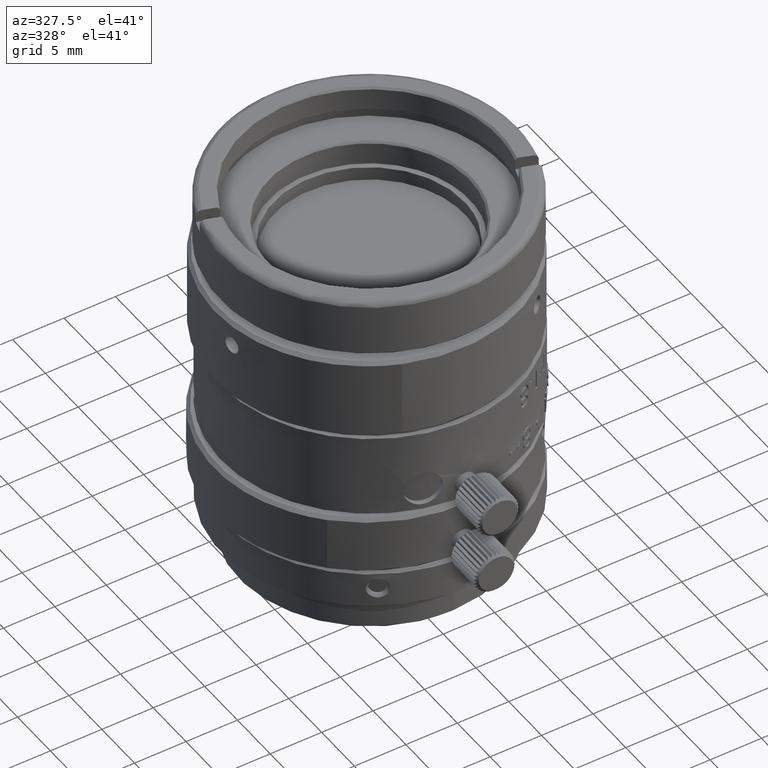
[diagram: clean part render]
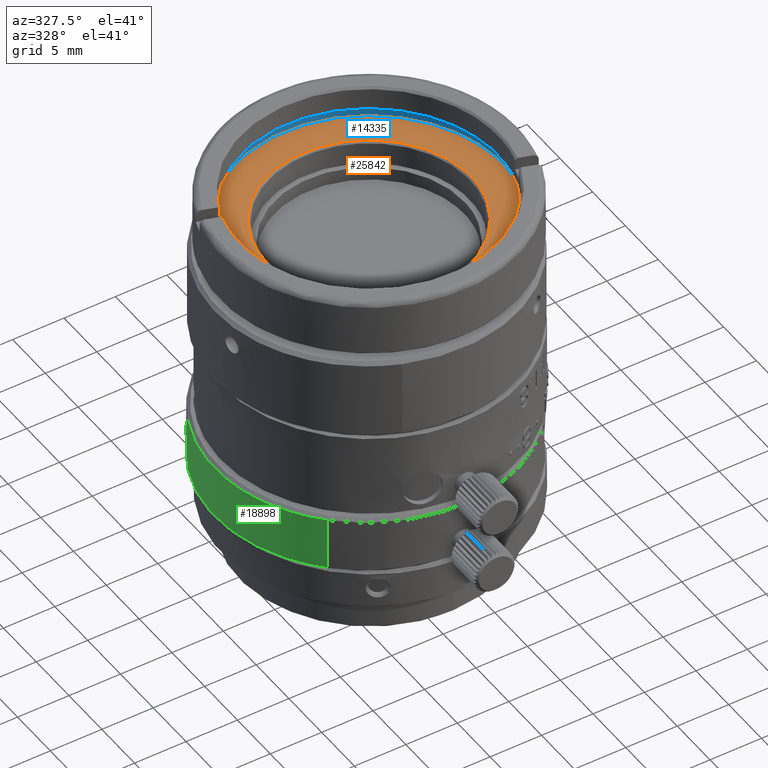
[diagram: same view with three faces highlighted in distinct colors, each labeled with its STEP entity id]
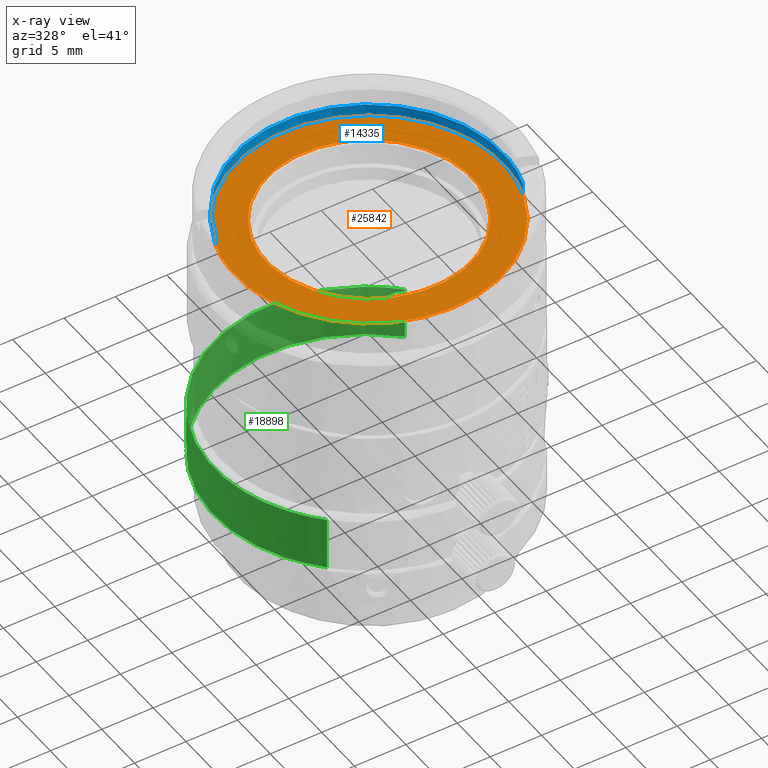
[diagram: x-ray of the same camera — body ghosted, the three highlighted faces saturated]
A machine part, auxiliary view with three faces highlighted in distinct colors.
The next image is the same camera in x-ray (body ghosted, the three faces saturated) — at least one of them is partly hidden behind the body in this view.
Their STEP definitions:

[orange] entity #25842 — the highlighted face is a freeform B-spline surface patch.
#144 = CARTESIAN_POINT ( 'NONE',  ( -1.109062775454421557, -3.412128415335567322, 20.28338461000000592 ) ) ;
#341 = CARTESIAN_POINT ( 'NONE',  ( 7.349475579012211490, -20.29719001293876701, 20.28338461000000237 ) ) ;
#941 = CARTESIAN_POINT ( 'NONE',  ( 9.491106216682762664, -17.04901619689714209, 20.28338460999999882 ) ) ;
#1243 = EDGE_CURVE ( 'NONE', #38739, #14136, #38176, .T. ) ;
#1334 = CARTESIAN_POINT ( 'NONE',  ( -8.348100477745473924, -18.33040316711712947, 20.28338460999999882 ) ) ;
#1423 = CARTESIAN_POINT ( 'NONE',  ( 20.79467018572369597, 7.280631241873954274, 20.28338460999999882 ) ) ;
#1912 = CARTESIAN_POINT ( 'NONE',  ( -9.392456872147651126, -10.77039815209112206, 20.28338461000000592 ) ) ;
#2543 = CARTESIAN_POINT ( 'NONE',  ( 9.677077302418627625, -10.02442381864011267, 20.28338460999999882 ) ) ;
#2933 = CARTESIAN_POINT ( 'NONE',  ( -14.48320873753839599, -16.41440033225177331, 20.28338460999999526 ) ) ;
#3328 = CARTESIAN_POINT ( 'NONE',  ( -4.785197564117120272, -4.686195844254519294, 20.28338461000000237 ) ) ;
#3898 = EDGE_LOOP ( 'NONE', ( #35118, #5634 ) ) ;
#3923 = CARTESIAN_POINT ( 'NONE',  ( 8.588653490000000446, -29.92460800799999987, 20.28338460999999882 ) ) ;
#4313 = CARTESIAN_POINT ( 'NONE',  ( -9.622167906664431669, -14.65426837845442876, 20.28338461000000237 ) ) ;
#4905 = CARTESIAN_POINT ( 'NONE',  ( -3.503810593897142667, -22.52540253868276920, 20.28338460999999882 ) ) ;
#5104 = CARTESIAN_POINT ( 'NONE',  ( -9.166168021418627632, -16.55507810635988619, 20.28338461000000237 ) ) ;
#5366 = EDGE_LOOP ( 'NONE', ( #20539, #31914 ) ) ;
#5543 = CARTESIAN_POINT ( 'NONE',  ( 3.380104013274721542, -28.02841434089751260, 20.28338460999999526 ) ) ;
#5634 = ORIENTED_EDGE ( 'NONE', *, *, #31205, .T. ) ;
#5730 = CARTESIAN_POINT ( 'NONE',  ( -5.335173139825152511, -5.032983057358619838, 20.28338461000000237 ) ) ;
#5926 = CARTESIAN_POINT ( 'NONE',  ( 0.1942319905056721641, -3.318512966414747023, 20.28338460999999882 ) ) ;
#6127 = CARTESIAN_POINT ( 'NONE',  ( -8.980196935682764448, -9.530485728102858545, 20.28338461000000237 ) ) ;
#6325 = CARTESIAN_POINT ( 'NONE',  ( 7.710312381788802405, -6.667483163440171445, 20.28338460999999882 ) ) ;
#6526 = CARTESIAN_POINT ( 'NONE',  ( 5.296106845117120265, -21.89330608074548223, 20.28338461000000592 ) ) ;
#7329 = CARTESIAN_POINT ( 'NONE',  ( -5.764219777184528049, -21.23914434021488518, 20.28338460999999882 ) ) ;
#7917 = CARTESIAN_POINT ( 'NONE',  ( -5.233363613045394658, -21.61454582572108407, 20.28338460999999882 ) ) ;
#8110 = CARTESIAN_POINT ( 'NONE',  ( -4.097703655908667919, -22.26077919546434103, 20.28338461000000237 ) ) ;
#8397 = CARTESIAN_POINT ( 'NONE',  ( -3.877321792670854528, 15.48385079619082383, 20.28338460999999882 ) ) ;
#8735 = CARTESIAN_POINT ( 'NONE',  ( 10.02315413416422629, -11.28441267438824980, 20.28338460999999882 ) ) ;
#8929 = CARTESIAN_POINT ( 'NONE',  ( 10.20948557749876251, -13.87848096170370304, 20.28338460999999882 ) ) ;
#9320 = CARTESIAN_POINT ( 'NONE',  ( 9.697236188783811883, -16.42905998686619995, 20.28338460999999882 ) ) ;
#10320 = CARTESIAN_POINT ( 'NONE',  ( -0.3332753587036950127, -23.24378189949876372, 20.28338461000000592 ) ) ;
#11938 = CARTESIAN_POINT ( 'NONE',  ( 9.444248447309332661, -9.417361041980383263, 20.28338461000000592 ) ) ;
#12127 = CARTESIAN_POINT ( 'NONE',  ( -8.069340222721088196, -7.800932708954610995, 20.28338460999999526 ) ) ;
#12331 = CARTESIAN_POINT ( 'NONE',  ( -1.749883647611750526, -3.522051468835771360, 20.28338461000000237 ) ) ;
#13137 = CARTESIAN_POINT ( 'NONE',  ( 9.226482873464334489, -17.64290925890867356, 20.28338461000000237 ) ) ;
#13893 = EDGE_CURVE ( 'NONE', #23832, #35169, #22679, .T. ) ;
#14136 = VERTEX_POINT ( 'NONE', #32043 ) ;
#14742 = CARTESIAN_POINT ( 'NONE',  ( 10.22669263658524663, -13.22852831250567540, 20.28338460999999882 ) ) ;
#14748 = CARTESIAN_POINT ( 'NONE',  ( -12.08054135273269836, -9.188141181895538523, 20.28338460999999882 ) ) ;
#14947 = CARTESIAN_POINT ( 'NONE',  ( 10.18878325910837290, -24.61761989017706398, 20.28338460999999526 ) ) ;
#15529 = CARTESIAN_POINT ( 'NONE',  ( -9.186326908163579219, -10.15044194194771876, 20.28338460999999882 ) ) ;
#16054 = EDGE_CURVE ( 'NONE', #14136, #38739, #22046, .T. ) ;
#16138 = CARTESIAN_POINT ( 'NONE',  ( 16.89031168599999688, -4.956552113000000759, 20.28338460999999882 ) ) ;
#16789 = CARTESIAN_POINT ( 'NONE',  ( 12.59145063576658075, -17.39136073965914875, 20.28338460999999882 ) ) ;
#17123 = CARTESIAN_POINT ( 'NONE',  ( -1.629791122870187126, -23.08133834731085088, 20.28338461000000237 ) ) ;
#17315 = CARTESIAN_POINT ( 'NONE',  ( -7.199403100788805965, -19.91201876155982120, 20.28338461000000237 ) ) ;
#17937 = CARTESIAN_POINT ( 'NONE',  ( 2.140700403870187341, -3.498163577689150650, 20.28338461000000237 ) ) ;
#18333 = CARTESIAN_POINT ( 'NONE',  ( 8.859009758745475693, -8.249098757882872945, 20.28338460999999882 ) ) ;
#18525 = CARTESIAN_POINT ( 'NONE',  ( 8.512222545641378701, -7.699123182174846036, 20.28338460999999882 ) ) ;
#19128 = FACE_BOUND ( 'NONE', #3898, .T. ) ;
#19528 = CARTESIAN_POINT ( 'NONE',  ( -6.751984409938758702, -20.38377190101221004, 20.28338460999999526 ) ) ;
#19728 = CARTESIAN_POINT ( 'NONE',  ( -9.186326908163579219, -10.15044194194771876, 20.28338460999999882 ) ) ;
#19812 = B_SPLINE_SURFACE_WITH_KNOTS ( 'NONE', 1, 1, ( 
 ( #3923, #28505 ),
 ( #16138, #25318 ) ),
 .UNSPECIFIED., .F., .F., .F.,
 ( 2, 2 ),
 ( 2, 2 ),
 ( 0.0000000000000000000, 1.000000000000000000 ),
 ( 0.0000000000000000000, 1.000000000000000000 ),
 .UNSPECIFIED. ) ;
#19929 = CARTESIAN_POINT ( 'NONE',  ( 0.3166772904943285782, -23.26098895858525495, 20.28338461000000947 ) ) ;
#20126 = CARTESIAN_POINT ( 'NONE',  ( -9.536132744310851450, -11.40450519912982408, 20.28338460999999882 ) ) ;
#20325 = CARTESIAN_POINT ( 'NONE',  ( -9.512244853164224523, -15.29508925061174374, 20.28338460999999171 ) ) ;
#20539 = ORIENTED_EDGE ( 'NONE', *, *, #16054, .F. ) ;
#20757 = CARTESIAN_POINT ( 'NONE',  ( -3.616935280019627275, -4.100957155690672096, 20.28338460999999882 ) ) ;
#21147 = CARTESIAN_POINT ( 'NONE',  ( 9.903366153147649342, -15.80910377290887681, 20.28338461000000237 ) ) ;
#21344 = CARTESIAN_POINT ( 'NONE',  ( 4.608612936908667912, -4.318722729535667604, 20.28338461000000237 ) ) ;
#21538 = CARTESIAN_POINT ( 'NONE',  ( 8.580249503721086413, -18.77856921604538698, 20.28338461000000237 ) ) ;
#22046 =( BOUNDED_CURVE ( )  B_SPLINE_CURVE ( 3, ( #35770, #8397, #1423, #32182 ),
 .UNSPECIFIED., .F., .F. ) 
 B_SPLINE_CURVE_WITH_KNOTS ( ( 4, 4 ),
 ( -9.103785541910911050, -5.962192888369839849 ),
 .UNSPECIFIED. ) 
 CURVE ( )  GEOMETRIC_REPRESENTATION_ITEM ( )  RATIONAL_B_SPLINE_CURVE ( ( 1.000000000000000000, 0.3333333335299309419, 0.3333333335299309419, 1.000000000000000000 ) ) 
 REPRESENTATION_ITEM ( '' )  );
#22679 = B_SPLINE_CURVE_WITH_KNOTS ( 'NONE', 3,
 ( #9320, #941, #13137, #21538, #33701, #341, #24715, #33898, #6526, #28703, #23116, #29289, #28901, #19929, #10320, #17123, #37697, #4905, #8110, #7917, #7329, #19528, #17315, #32489, #1334, #31699, #5104, #20325, #4313, #29484, #37892, #20126, #1912, #19728 ),
 .UNSPECIFIED., .F., .F.,
 ( 4, 2, 2, 2, 2, 2, 2, 2, 2, 2, 2, 2, 2, 2, 2, 2, 4 ),
 ( 0.0000000000000000000, 0.1963495408493620697, 0.3926990816987241395, 0.5890486225480865423, 0.7853981633974490562, 0.9817477042468113480, 1.178097245096173751, 1.374446785945536265, 1.570796326794898778, 1.767145867644260848, 1.963495408493622696, 2.159844949342985210, 2.356194490192347057, 2.552544031041708905, 2.748893571891071197, 2.945243112740433045, 3.141592653589795336 ),
 .UNSPECIFIED. ) ;
#23116 = CARTESIAN_POINT ( 'NONE',  ( 3.520781784359885869, -22.71137362441862351, 20.28338460999999526 ) ) ;
#23832 = VERTEX_POINT ( 'NONE', #34037 ) ;
#24130 = CARTESIAN_POINT ( 'NONE',  ( 2.774807450908865381, -3.641839449852348309, 20.28338460999999882 ) ) ;
#24520 = CARTESIAN_POINT ( 'NONE',  ( 6.275129058184527153, -5.340357584785111911, 20.28338461000000237 ) ) ;
#24715 = CARTESIAN_POINT ( 'NONE',  ( 6.877722439559821765, -20.74460870378879918, 20.28338460999999526 ) ) ;
#24717 = CARTESIAN_POINT ( 'NONE',  ( 10.13307718766443344, -11.92523354654557011, 20.28338460999999882 ) ) ;
#25318 = CARTESIAN_POINT ( 'NONE',  ( -8.077744209000000453, 3.345106083000000119, 20.28338460999999882 ) ) ;
#25842 = ADVANCED_FACE ( 'NONE', ( #19128, #31301 ), #19812, .T. ) ;
#26922 = CARTESIAN_POINT ( 'NONE',  ( 10.04704202531085144, -15.17499672587017834, 20.28338460999999882 ) ) ;
#27315 = CARTESIAN_POINT ( 'NONE',  ( 12.59145063576658075, -17.39136073965914875, 20.28338460999999882 ) ) ;
#27506 = CARTESIAN_POINT ( 'NONE',  ( 4.014719874897141771, -4.054099386317237652, 20.28338461000000237 ) ) ;
#28505 = CARTESIAN_POINT ( 'NONE',  ( -16.37940240500000044, -21.62294981200000166, 20.28338460999999882 ) ) ;
#28703 = CARTESIAN_POINT ( 'NONE',  ( 4.127844561019626823, -22.47854476930931611, 20.28338460999999882 ) ) ;
#28901 = CARTESIAN_POINT ( 'NONE',  ( 1.619972056454418663, -23.16737350966442932, 20.28338460999999882 ) ) ;
#29289 = CARTESIAN_POINT ( 'NONE',  ( 2.260792928611746522, -23.05745045616423639, 20.28338461000000237 ) ) ;
#29484 = CARTESIAN_POINT ( 'NONE',  ( -9.715783355585255521, -13.35097361249432524, 20.28338460999999882 ) ) ;
#29919 = CARTESIAN_POINT ( 'NONE',  ( 5.744272894045393762, -4.964956099278917456, 20.28338461000000237 ) ) ;
#29925 = CARTESIAN_POINT ( 'NONE',  ( -11.07241428821441787, -23.22307957878499707, 20.28338460999999526 ) ) ;
#30311 = CARTESIAN_POINT ( 'NONE',  ( -3.846155137469847496, -25.62574695984125128, 20.28338460999999882 ) ) ;
#30695 = CARTESIAN_POINT ( 'NONE',  ( -3.009872503359887652, -3.868128300581369139, 20.28338460999999882 ) ) ;
#30711 = CARTESIAN_POINT ( 'NONE',  ( -9.186326908163579219, -10.15044194194771876, 20.28338460999999882 ) ) ;
#31205 = EDGE_CURVE ( 'NONE', #35169, #23832, #35820, .T. ) ;
#31301 = FACE_OUTER_BOUND ( 'NONE', #5366, .T. ) ;
#31699 = CARTESIAN_POINT ( 'NONE',  ( -8.933339166309327339, -17.16214088301961738, 20.28338460999999882 ) ) ;
#31914 = ORIENTED_EDGE ( 'NONE', *, *, #1243, .F. ) ;
#32043 = CARTESIAN_POINT ( 'NONE',  ( -12.08054135273269836, -9.188141181895538523, 20.28338460999999882 ) ) ;
#32182 = CARTESIAN_POINT ( 'NONE',  ( 12.59145063576658075, -17.39136073965914875, 20.28338460999999882 ) ) ;
#32489 = CARTESIAN_POINT ( 'NONE',  ( -8.001313264641384038, -18.88037874282514039, 20.28338460999999882 ) ) ;
#33701 = CARTESIAN_POINT ( 'NONE',  ( 8.204848018214892846, -19.30942538018452126, 20.28338461000000592 ) ) ;
#33703 = CARTESIAN_POINT ( 'NONE',  ( -6.838566298012210609, -6.282311912061237180, 20.28338460999999882 ) ) ;
#33898 = CARTESIAN_POINT ( 'NONE',  ( 5.846082420825153392, -21.54651886764138169, 20.28338460999999882 ) ) ;
#34037 = CARTESIAN_POINT ( 'NONE',  ( 9.697236188783811883, -16.42905998686619995, 20.28338460999999882 ) ) ;
#35118 = ORIENTED_EDGE ( 'NONE', *, *, #13893, .T. ) ;
#35169 = VERTEX_POINT ( 'NONE', #30711 ) ;
#35770 = CARTESIAN_POINT ( 'NONE',  ( -12.08054135273269836, -9.188141181895538523, 20.28338460999999882 ) ) ;
#35820 = B_SPLINE_CURVE_WITH_KNOTS ( 'NONE', 3,
 ( #15529, #6127, #39500, #12127, #36109, #33703, #36300, #5730, #3328, #20757, #30695, #12331, #144, #5926, #36700, #17937, #24130, #27506, #21344, #29919, #24520, #39309, #6325, #18525, #18333, #11938, #2543, #8735, #24717, #14742, #8929, #26922, #21147, #39116 ),
 .UNSPECIFIED., .F., .F.,
 ( 4, 2, 2, 2, 2, 2, 2, 2, 2, 2, 2, 2, 2, 2, 2, 2, 4 ),
 ( 0.0000000000000000000, 0.1963495408493621530, 0.3926990816987243060, 0.5890486225480864313, 0.7853981633974486121, 0.9817477042468109039, 1.178097245096172863, 1.374446785945535376, 1.570796326794897668, 1.767145867644259960, 1.963495408493622030, 2.159844949342984322, 2.356194490192346169, 2.552544031041708461, 2.748893571891070753, 2.945243112740432601, 3.141592653589795336 ),
 .UNSPECIFIED. ) ;
#36109 = CARTESIAN_POINT ( 'NONE',  ( -7.693938737214892853, -7.270076544815476716, 20.28338461000000237 ) ) ;
#36300 = CARTESIAN_POINT ( 'NONE',  ( -6.366813158559826213, -5.834893221211192582, 20.28338460999999882 ) ) ;
#36700 = CARTESIAN_POINT ( 'NONE',  ( 0.8441846397036923966, -3.335720025501235142, 20.28338460999999526 ) ) ;
#37697 = CARTESIAN_POINT ( 'NONE',  ( -2.263898169908865832, -22.93766247514764345, 20.28338460999999882 ) ) ;
#37892 = CARTESIAN_POINT ( 'NONE',  ( -9.698576296498762517, -12.70102096329629404, 20.28338460999999882 ) ) ;
#38176 =( BOUNDED_CURVE ( )  B_SPLINE_CURVE ( 3, ( #27315, #14947, #5543, #30311, #29925, #2933, #14748 ),
 .UNSPECIFIED., .F., .F. ) 
 B_SPLINE_CURVE_WITH_KNOTS ( ( 4, 3, 4 ),
 ( -5.962192888369839849, -4.391396561550582334, -2.820600234731325262 ),
 .UNSPECIFIED. ) 
 CURVE ( )  GEOMETRIC_REPRESENTATION_ITEM ( )  RATIONAL_B_SPLINE_CURVE ( ( 1.000000000000000000, 0.8047378540760217192, 0.8047378540760217192, 1.000000000000000000, 0.8047378540760217192, 0.8047378540760217192, 1.000000000000000000 ) ) 
 REPRESENTATION_ITEM ( '' )  );
#38739 = VERTEX_POINT ( 'NONE', #16789 ) ;
#39116 = CARTESIAN_POINT ( 'NONE',  ( 9.697236188783811883, -16.42905998686619995, 20.28338460999999882 ) ) ;
#39309 = CARTESIAN_POINT ( 'NONE',  ( 7.262893690938759583, -6.195730023987784385, 20.28338461000000237 ) ) ;
#39500 = CARTESIAN_POINT ( 'NONE',  ( -8.715573592464330943, -8.936592666091327075, 20.28338460999999882 ) ) ;

[blue] entity #14335 — the highlighted face is a freeform B-spline surface patch.
#15 = CARTESIAN_POINT ( 'NONE',  ( 11.04319160798588584, -5.985413161146157179, 21.48338460999999810 ) ) ;
#539 = B_SPLINE_CURVE_WITH_KNOTS ( 'NONE', 3,
 ( #35787, #8416, #26598, #38784, #24196, #9191, #32788, #5412, #21019, #2996, #21407, #2806, #18006, #36372, #21213, #38980, #15194, #17623, #12008, #39184, #2220, #27377, #23811, #15, #5605, #29793, #24390, #2417, #14421, #30179, #33567, #6195, #14613, #26791 ),
 .UNSPECIFIED., .F., .F.,
 ( 4, 2, 2, 2, 2, 2, 2, 2, 2, 2, 2, 2, 2, 2, 2, 2, 4 ),
 ( 0.0000000000000000000, 0.1963495408493622640, 0.3926990816987245281, 0.5890486225480867644, 0.7853981633974488341, 0.9817477042468109039, 1.178097245096173085, 1.374446785945535376, 1.570796326794897446, 1.767145867644259960, 1.963495408493622030, 2.159844949342984322, 2.356194490192346613, 2.552544031041708905, 2.748893571891071197, 2.945243112740433489, 3.141592653589795336 ),
 .UNSPECIFIED. ) ;
#1423 = CARTESIAN_POINT ( 'NONE',  ( 20.79467018572369597, 7.280631241873954274, 20.28338460999999882 ) ) ;
#1670 = CARTESIAN_POINT ( 'NONE',  ( 12.59145063576658075, -17.39136073965914875, 21.48338460999999810 ) ) ;
#2220 = CARTESIAN_POINT ( 'NONE',  ( 8.120355857252194554, -2.903608811147684765, 21.48338460999999810 ) ) ;
#2417 = CARTESIAN_POINT ( 'NONE',  ( 13.01727308462221977, -10.66971097084837616, 21.48338461000000166 ) ) ;
#2806 = CARTESIAN_POINT ( 'NONE',  ( -2.364585351151627712, -0.5279325183777757724, 21.48338461000000166 ) ) ;
#2962 = ORIENTED_EDGE ( 'NONE', *, *, #16054, .T. ) ;
#2996 = CARTESIAN_POINT ( 'NONE',  ( -4.803949278264885159, -1.284291718260630377, 21.48338461000000876 ) ) ;
#3439 = CARTESIAN_POINT ( 'NONE',  ( -12.08054135499999937, -9.188141181999995410, 21.48338460999999810 ) ) ;
#3666 = CARTESIAN_POINT ( 'NONE',  ( -12.08054135273269836, -9.188141181895538523, 21.48338460999999810 ) ) ;
#5059 = EDGE_CURVE ( 'NONE', #37480, #12938, #539, .T. ) ;
#5412 = CARTESIAN_POINT ( 'NONE',  ( -7.048883160853844032, -2.502013995014114922, 21.48338461000000876 ) ) ;
#5605 = CARTESIAN_POINT ( 'NONE',  ( 11.49628042463915634, -6.703974214922062025, 21.48338461000000166 ) ) ;
#6195 = CARTESIAN_POINT ( 'NONE',  ( 13.04848339532759027, -15.75288612601722882, 21.48338460999999810 ) ) ;
#6379 = CARTESIAN_POINT ( 'NONE',  ( -12.08054135273269836, -9.188141181895538523, 21.48338460999999810 ) ) ;
#6574 = EDGE_CURVE ( 'NONE', #14136, #37480, #38599, .T. ) ;
#8397 = CARTESIAN_POINT ( 'NONE',  ( -3.877321792670854528, 15.48385079619082383, 20.28338460999999882 ) ) ;
#8416 = CARTESIAN_POINT ( 'NONE',  ( -11.81122581090974677, -8.378148138170569581, 21.48338461000000166 ) ) ;
#9191 = CARTESIAN_POINT ( 'NONE',  ( -9.013115437118631945, -4.134302945032468202, 21.48338460999999810 ) ) ;
#9223 = FACE_OUTER_BOUND ( 'NONE', #16464, .T. ) ;
#12008 = CARTESIAN_POINT ( 'NONE',  ( 5.942998188125939052, -1.568809515559282941, 21.48338460999999455 ) ) ;
#12938 = VERTEX_POINT ( 'NONE', #26872 ) ;
#13118 = ORIENTED_EDGE ( 'NONE', *, *, #6574, .F. ) ;
#14136 = VERTEX_POINT ( 'NONE', #32043 ) ;
#14335 = ADVANCED_FACE ( 'NONE', ( #9223 ), #24826, .T. ) ;
#14421 = CARTESIAN_POINT ( 'NONE',  ( 13.16089117831899635, -11.50696441820984006, 21.48338461000000166 ) ) ;
#14613 = CARTESIAN_POINT ( 'NONE',  ( 12.86076616795965677, -16.58136769536660537, 21.48338460999999810 ) ) ;
#15194 = CARTESIAN_POINT ( 'NONE',  ( 3.547071373366591729, -0.6844394350403318894, 21.48338461000000166 ) ) ;
#15229 = CARTESIAN_POINT ( 'NONE',  ( -3.877321796365009288, 15.48385079987937551, 20.28338461000000237 ) ) ;
#16054 = EDGE_CURVE ( 'NONE', #14136, #38739, #22046, .T. ) ;
#16464 = EDGE_LOOP ( 'NONE', ( #32664, #13118, #2962, #37483 ) ) ;
#16789 = CARTESIAN_POINT ( 'NONE',  ( 12.59145063576658075, -17.39136073965914875, 20.28338460999999882 ) ) ;
#17071 = CARTESIAN_POINT ( 'NONE',  ( 12.59145063576658075, -17.39136073965914875, 20.28338460999999882 ) ) ;
#17623 = CARTESIAN_POINT ( 'NONE',  ( 5.167057464829429847, -1.223070511090255552, 21.48338460999999810 ) ) ;
#18006 = CARTESIAN_POINT ( 'NONE',  ( -1.527331903790151824, -0.3843144246809985232, 21.48338461000000521 ) ) ;
#18265 = CARTESIAN_POINT ( 'NONE',  ( -12.08054135273269836, -9.188141181895538523, 20.28338460999999882 ) ) ;
#18430 = CARTESIAN_POINT ( 'NONE',  ( -12.08054135499999937, -9.188141181999995410, 20.28338460999999882 ) ) ;
#21019 = CARTESIAN_POINT ( 'NONE',  ( -6.330322107077930305, -2.048925178360836874, 21.48338461000000166 ) ) ;
#21213 = CARTESIAN_POINT ( 'NONE',  ( 1.024649618082635882, -0.2844843742506369400, 21.48338461000000166 ) ) ;
#21407 = CARTESIAN_POINT ( 'NONE',  ( -4.010801933720960832, -0.9800932062384655197, 21.48338461000000521 ) ) ;
#21837 = CARTESIAN_POINT ( 'NONE',  ( 20.79467018719686777, 7.280631246304696269, 21.48338460999999810 ) ) ;
#22046 =( BOUNDED_CURVE ( )  B_SPLINE_CURVE ( 3, ( #35770, #8397, #1423, #32182 ),
 .UNSPECIFIED., .F., .F. ) 
 B_SPLINE_CURVE_WITH_KNOTS ( ( 4, 4 ),
 ( -9.103785541910911050, -5.962192888369839849 ),
 .UNSPECIFIED. ) 
 CURVE ( )  GEOMETRIC_REPRESENTATION_ITEM ( )  RATIONAL_B_SPLINE_CURVE ( ( 1.000000000000000000, 0.3333333335299309419, 0.3333333335299309419, 1.000000000000000000 ) ) 
 REPRESENTATION_ITEM ( '' )  );
#23811 = CARTESIAN_POINT ( 'NONE',  ( 9.995469801472937732, -4.637541774855502119, 21.48338461000000166 ) ) ;
#24196 = CARTESIAN_POINT ( 'NONE',  ( -10.13068751085232222, -5.424849745747817309, 21.48338461000000166 ) ) ;
#24390 = CARTESIAN_POINT ( 'NONE',  ( 12.56511239676153124, -9.023494388279042155, 21.48338461000000521 ) ) ;
#24826 =( BOUNDED_SURFACE ( )  B_SPLINE_SURFACE ( 1, 3, ( 
 ( #30808, #34009, #15229, #18430 ),
 ( #28215, #21837, #27409, #3439 ) ),
 .UNSPECIFIED., .F., .F., .F. ) 
 B_SPLINE_SURFACE_WITH_KNOTS ( ( 2, 2 ),
 ( 4, 4 ),
 ( 0.0000000000000000000, 1.000000000000000000 ),
 ( 0.0000000000000000000, 1.000000000000000000 ),
 .UNSPECIFIED. ) 
 GEOMETRIC_REPRESENTATION_ITEM ( )  RATIONAL_B_SPLINE_SURFACE ( (
 ( 1.000000000000000000, 0.3333333334700690487, 0.3333333334700690487, 1.000000000000000000),
 ( 1.000000000000000000, 0.3333333334700690487, 0.3333333334700690487, 1.000000000000000000) ) ) 
 REPRESENTATION_ITEM ( '' )  SURFACE ( )  );
#26598 = CARTESIAN_POINT ( 'NONE',  ( -11.46548680644071538, -7.602207414874049718, 21.48338461000000166 ) ) ;
#26791 = CARTESIAN_POINT ( 'NONE',  ( 12.59145063576658075, -17.39136073965914875, 21.48338460999999810 ) ) ;
#26872 = CARTESIAN_POINT ( 'NONE',  ( 12.59145063576658075, -17.39136073965914875, 21.48338460999999810 ) ) ;
#27377 = CARTESIAN_POINT ( 'NONE',  ( 9.410902657967527674, -4.021180884881367490, 21.48338461000000166 ) ) ;
#27409 = CARTESIAN_POINT ( 'NONE',  ( -3.877321796365009288, 15.48385079987937551, 21.48338460999999810 ) ) ;
#28215 = CARTESIAN_POINT ( 'NONE',  ( 12.59145063868250780, -17.39136073893969225, 21.48338460999999810 ) ) ;
#29793 = CARTESIAN_POINT ( 'NONE',  ( 12.26091388473937194, -8.230347043735132928, 21.48338460999999810 ) ) ;
#30179 = CARTESIAN_POINT ( 'NONE',  ( 13.28320276537320055, -13.20976159187986276, 21.48338460999999810 ) ) ;
#30808 = CARTESIAN_POINT ( 'NONE',  ( 12.59145063868250780, -17.39136073893969225, 20.28338460999999882 ) ) ;
#31737 = B_SPLINE_CURVE_WITH_KNOTS ( 'NONE', 1,
 ( #1670, #17071 ),
 .UNSPECIFIED., .F., .F.,
 ( 2, 2 ),
 ( -1.000000000000000000, 0.0000000000000000000 ),
 .UNSPECIFIED. ) ;
#32043 = CARTESIAN_POINT ( 'NONE',  ( -12.08054135273269836, -9.188141181895538523, 20.28338460999999882 ) ) ;
#32182 = CARTESIAN_POINT ( 'NONE',  ( 12.59145063576658075, -17.39136073965914875, 20.28338460999999882 ) ) ;
#32664 = ORIENTED_EDGE ( 'NONE', *, *, #5059, .F. ) ;
#32788 = CARTESIAN_POINT ( 'NONE',  ( -8.396754547144499981, -3.549735801527058587, 21.48338461000000521 ) ) ;
#33567 = CARTESIAN_POINT ( 'NONE',  ( 13.26072122874936277, -14.05894594008265130, 21.48338461000000166 ) ) ;
#34009 = CARTESIAN_POINT ( 'NONE',  ( 20.79467018719686777, 7.280631246304696269, 20.28338461000000237 ) ) ;
#35770 = CARTESIAN_POINT ( 'NONE',  ( -12.08054135273269836, -9.188141181895538523, 20.28338460999999882 ) ) ;
#35787 = CARTESIAN_POINT ( 'NONE',  ( -12.08054135273269836, -9.188141181895538523, 21.48338460999999810 ) ) ;
#36372 = CARTESIAN_POINT ( 'NONE',  ( 0.1754652698798543631, -0.2620028376268008774, 21.48338460999999810 ) ) ;
#37480 = VERTEX_POINT ( 'NONE', #6379 ) ;
#37483 = ORIENTED_EDGE ( 'NONE', *, *, #37746, .F. ) ;
#37746 = EDGE_CURVE ( 'NONE', #12938, #38739, #31737, .T. ) ;
#38599 = B_SPLINE_CURVE_WITH_KNOTS ( 'NONE', 1,
 ( #18265, #3666 ),
 .UNSPECIFIED., .F., .F.,
 ( 2, 2 ),
 ( -1.000000000000000000, 0.0000000000000000000 ),
 .UNSPECIFIED. ) ;
#38739 = VERTEX_POINT ( 'NONE', #16789 ) ;
#38784 = CARTESIAN_POINT ( 'NONE',  ( -10.62116176474229334, -6.118430646357456482, 21.48338460999999810 ) ) ;
#38980 = CARTESIAN_POINT ( 'NONE',  ( 2.718589804017246703, -0.4967222076724099877, 21.48338460999999810 ) ) ;
#39184 = CARTESIAN_POINT ( 'NONE',  ( 7.426774956642548275, -2.413134557257715418, 21.48338461000000521 ) ) ;

[green] entity #18898 — the highlighted face is a freeform B-spline surface patch.
#169 = CARTESIAN_POINT ( 'NONE',  ( 4.320174984081688763, 3.331510790516535092, -4.928615390000000041 ) ) ;
#1531 = CARTESIAN_POINT ( 'NONE',  ( -12.35568391716207870, -5.150646410162210032, -3.626252984498358867 ) ) ;
#1562 = CARTESIAN_POINT ( 'NONE',  ( -12.77806132287788010, -5.839841467546145637, -2.728649524009844285 ) ) ;
#1913 = CARTESIAN_POINT ( 'NONE',  ( -12.36581544753527417, -5.165704953122689069, -3.727110977182377827 ) ) ;
#2020 = CARTESIAN_POINT ( 'NONE',  ( 9.263945243691624754, -1.728017637879241564, -1.059975738130479517 ) ) ;
#2133 = CARTESIAN_POINT ( 'NONE',  ( -13.08992796001250092, -6.409015884902361293, -3.071240104212243249 ) ) ;
#2156 = CARTESIAN_POINT ( 'NONE',  ( 10.42982502467092054, -2.778139255170930078, 0.2213846100000000094 ) ) ;
#3151 = CARTESIAN_POINT ( 'NONE',  ( -4.320174972318992168, 3.331510793588996933, 0.2213846099999999817 ) ) ;
#3306 = CARTESIAN_POINT ( 'NONE',  ( 10.42982502467092054, -2.778139255170930078, 0.2213846100000000094 ) ) ;
#3355 = ORIENTED_EDGE ( 'NONE', *, *, #31473, .F. ) ;
#3498 = EDGE_CURVE ( 'NONE', #39392, #28976, #36327, .T. ) ;
#4535 = VERTEX_POINT ( 'NONE', #8263 ) ;
#5126 = ORIENTED_EDGE ( 'NONE', *, *, #18508, .T. ) ;
#5137 = CARTESIAN_POINT ( 'NONE',  ( -12.77502811145850892, -5.834846977678634694, -2.728617612113536595 ) ) ;
#5298 = CARTESIAN_POINT ( 'NONE',  ( -12.69506964841124308, -5.697312658742812452, -4.314861343092012191 ) ) ;
#5524 = CARTESIAN_POINT ( 'NONE',  ( -13.15507252016485928, -6.536640046045729235, -3.528615390552110043 ) ) ;
#5664 = VERTEX_POINT ( 'NONE', #5946 ) ;
#5880 = CARTESIAN_POINT ( 'NONE',  ( -13.15507252016485928, -6.536640046045729235, -3.528615390552110043 ) ) ;
#5946 = CARTESIAN_POINT ( 'NONE',  ( -10.42982502467092054, -23.63778929682905172, 0.2213846100000000094 ) ) ;
#6095 = EDGE_CURVE ( 'NONE', #28401, #5664, #34908, .T. ) ;
#6151 = CARTESIAN_POINT ( 'NONE',  ( -16.53947506740261986, -8.887789295310616566, 0.2213846099999999817 ) ) ;
#6496 = CARTESIAN_POINT ( 'NONE',  ( 9.304312491600036594, -1.759998910486314516, -2.529798949769203720 ) ) ;
#6556 = CARTESIAN_POINT ( 'NONE',  ( -16.53947506870291662, -17.52813925171129483, 0.2213846099999999817 ) ) ;
#6708 = CARTESIAN_POINT ( 'NONE',  ( 10.42982502549056001, -2.778139256572335292, -3.428615389725260254 ) ) ;
#6855 =( BOUNDED_CURVE ( )  B_SPLINE_CURVE ( 3, ( #25535, #38306, #10930, #35502, #8128, #23133, #35307 ),
 .UNSPECIFIED., .F., .F. ) 
 B_SPLINE_CURVE_WITH_KNOTS ( ( 4, 3, 4 ),
 ( -3.926990816939299744, -2.356194490168373790, -0.7853981633974478349 ),
 .UNSPECIFIED. ) 
 CURVE ( )  GEOMETRIC_REPRESENTATION_ITEM ( )  RATIONAL_B_SPLINE_CURVE ( ( 1.000000000000000000, 0.8047378540760217192, 0.8047378540760217192, 1.000000000000000000, 0.8047378540760217192, 0.8047378540760217192, 1.000000000000000000 ) ) 
 REPRESENTATION_ITEM ( '' )  );
#7333 = CARTESIAN_POINT ( 'NONE',  ( 10.42982502299999936, -2.778139253999995173, -4.928615390000000041 ) ) ;
#7398 = CARTESIAN_POINT ( 'NONE',  ( 10.42982502549056001, -2.778139256572335292, -3.428615389725260254 ) ) ;
#7726 = CARTESIAN_POINT ( 'NONE',  ( -12.46196961207380127, -5.317189947424153296, -4.055082055601072710 ) ) ;
#7830 = CARTESIAN_POINT ( 'NONE',  ( 9.302874082615161910, -1.759680481907881067, -0.9509557255245150165 ) ) ;
#8128 = CARTESIAN_POINT ( 'NONE',  ( -16.53947506740261986, -8.887789295310620119, -4.928615390000000041 ) ) ;
#8139 = CARTESIAN_POINT ( 'NONE',  ( -12.99120847011135105, -6.222190429407286949, -2.841142872466944080 ) ) ;
#8263 = CARTESIAN_POINT ( 'NONE',  ( -10.42982502299999936, -23.63778929799999773, -4.928615390000000041 ) ) ;
#8275 = CARTESIAN_POINT ( 'NONE',  ( 9.158239410172660300, -1.645561804381535209, -1.728615390981570021 ) ) ;
#8335 = CARTESIAN_POINT ( 'NONE',  ( -12.55608645511444976, -5.476524450594789428, -2.814827648640950919 ) ) ;
#8389 = ORIENTED_EDGE ( 'NONE', *, *, #24615, .F. ) ;
#8887 = CARTESIAN_POINT ( 'NONE',  ( -12.87363337652891637, -6.017192700538357641, -4.328619686908471209 ) ) ;
#9490 = CARTESIAN_POINT ( 'NONE',  ( 9.846726760260573030, -2.226568161829671322, -3.243799388274748896 ) ) ;
#9747 = CARTESIAN_POINT ( 'NONE',  ( -10.42982502299999936, -23.63778929799999773, 0.2213846100000000094 ) ) ;
#10523 = CARTESIAN_POINT ( 'NONE',  ( -12.44142671525845145, -5.284550057202097584, -4.007823760781069389 ) ) ;
#10915 = CARTESIAN_POINT ( 'NONE',  ( -12.47430275658728327, -5.336816746077228224, -4.080190524314613931 ) ) ;
#10930 = CARTESIAN_POINT ( 'NONE',  ( -4.320174972318996609, 3.331510793588995600, -4.928615390000000041 ) ) ;
#10944 = CARTESIAN_POINT ( 'NONE',  ( -13.15568391619494726, -6.536287055942604951, -3.430977819440141907 ) ) ;
#10964 = CARTESIAN_POINT ( 'NONE',  ( 10.42982502556251845, -2.778139256644295063, -0.02861538890807584917 ) ) ;
#11022 = CARTESIAN_POINT ( 'NONE',  ( 9.379662854722079501, -1.823390369689992463, -0.7882950564173389907 ) ) ;
#11113 = CARTESIAN_POINT ( 'NONE',  ( -12.76122234904878994, -5.810219111689131744, -4.328218721977407313 ) ) ;
#11140 = CARTESIAN_POINT ( 'NONE',  ( -12.35638567162878942, -5.150241252012687454, -3.319173143963861428 ) ) ;
#11219 = CARTESIAN_POINT ( 'NONE',  ( 10.15249461194066782, -2.509210841597492969, -0.05822644167029610712 ) ) ;
#11332 = CARTESIAN_POINT ( 'NONE',  ( -12.35507251983146126, -5.150999399469290196, -3.528615390357280113 ) ) ;
#11697 = CARTESIAN_POINT ( 'NONE',  ( -12.77230763710089434, -5.830071271239085640, -4.328615322289619982 ) ) ;
#12384 = B_SPLINE_CURVE_WITH_KNOTS ( 'NONE', 3,
 ( #5524, #10944, #20156, #38126, #35906, #2133, #17346, #35708, #23343, #32895, #14340, #17539, #29708, #8139, #38320, #13765, #17734, #22955, #20354, #38902, #26320, #1562, #26133, #5137, #25940, #14147, #8335, #35125, #11140, #11332 ),
 .UNSPECIFIED., .F., .F.,
 ( 4, 2, 2, 2, 1, 1, 2, 2, 2, 2, 2, 1, 1, 2, 2, 2, 4 ),
 ( -1.000000000000000000, -0.8749999999999851230, -0.8124999999999775735, -0.7812499999999740208, -0.7656249999999720224, -0.7578124999999712452, -0.7539062499999713562, -0.7499999999999715783, -0.6249999999999811262, -0.5624999999999860112, -0.5312499999999884537, -0.5156249999999895639, -0.5078124999999915623, -0.5039062499999912292, -0.4999999999999910072, -0.2499999999999954481, 0.0000000000000000000 ),
 .UNSPECIFIED. ) ;
#12557 = CARTESIAN_POINT ( 'NONE',  ( -4.320174972318992168, 3.331510793588996933, -4.928615390000000041 ) ) ;
#12636 = ORIENTED_EDGE ( 'NONE', *, *, #13541, .T. ) ;
#12713 = CARTESIAN_POINT ( 'NONE',  ( 9.159115286969989000, -1.644685933135020983, -1.909636322394772545 ) ) ;
#13541 = EDGE_CURVE ( 'NONE', #39392, #16306, #29799, .T. ) ;
#13639 = CARTESIAN_POINT ( 'NONE',  ( 9.158239410172660300, -1.645561804381535209, -1.728615390981570021 ) ) ;
#13765 = CARTESIAN_POINT ( 'NONE',  ( -12.85194992316537110, -5.969037264621633199, -2.742369436487965828 ) ) ;
#13925 = CARTESIAN_POINT ( 'NONE',  ( -12.40974995270559411, -5.234397084676772671, -3.918791825479268631 ) ) ;
#13998 = ORIENTED_EDGE ( 'NONE', *, *, #28545, .T. ) ;
#14038 = ORIENTED_EDGE ( 'NONE', *, *, #26949, .F. ) ;
#14147 = CARTESIAN_POINT ( 'NONE',  ( -12.66420754415414152, -5.654456521950822712, -2.728611092968011409 ) ) ;
#14223 = CARTESIAN_POINT ( 'NONE',  ( 9.176889002683394025, -1.658399597590769270, -1.375280753162577918 ) ) ;
#14312 = CARTESIAN_POINT ( 'NONE',  ( -12.61612198685978292, -5.566075336517465999, -4.273646210910059473 ) ) ;
#14340 = CARTESIAN_POINT ( 'NONE',  ( -13.05376510059059036, -6.340474969150077911, -2.977040266997491358 ) ) ;
#15396 = EDGE_CURVE ( 'NONE', #4535, #5664, #25411, .T. ) ;
#15506 = VERTEX_POINT ( 'NONE', #18986 ) ;
#15507 = CARTESIAN_POINT ( 'NONE',  ( -10.42982501631629333, 18.08151077882407165, 0.2213846099999999817 ) ) ;
#16306 = VERTEX_POINT ( 'NONE', #24654 ) ;
#17232 = CARTESIAN_POINT ( 'NONE',  ( 9.846477384568874669, -2.226278733964464962, -0.2136732099577098865 ) ) ;
#17346 = CARTESIAN_POINT ( 'NONE',  ( -13.08259136345564499, -6.395079806534143430, -3.049407042498789799 ) ) ;
#17422 = CARTESIAN_POINT ( 'NONE',  ( 9.456213805002967376, -1.887588988378560595, -0.6545630832298491297 ) ) ;
#17539 = CARTESIAN_POINT ( 'NONE',  ( -13.05154598039011127, -6.336277847447243872, -2.972098562237031949 ) ) ;
#17734 = CARTESIAN_POINT ( 'NONE',  ( -12.83061760658300621, -5.930948150545233943, -2.735893381938168112 ) ) ;
#18216 = ORIENTED_EDGE ( 'NONE', *, *, #15396, .T. ) ;
#18358 = CARTESIAN_POINT ( 'NONE',  ( -10.42982501986080557, -2.778139250860810261, -4.928615390000000041 ) ) ;
#18479 = CARTESIAN_POINT ( 'NONE',  ( -12.77171970998939976, -5.829009729594080369, -4.328603543724121039 ) ) ;
#18508 = EDGE_CURVE ( 'NONE', #28401, #30586, #39238, .T. ) ;
#18549 = CARTESIAN_POINT ( 'NONE',  ( -16.53947506740261986, -8.887789295310616566, -4.928615390000000041 ) ) ;
#18702 = CARTESIAN_POINT ( 'NONE',  ( 9.183004940019293016, -1.661898041858315578, -2.112659109482405206 ) ) ;
#18795 = CARTESIAN_POINT ( 'NONE',  ( -10.42982502299999936, -23.63778929799999773, -4.928615390000000041 ) ) ;
#18898 = ADVANCED_FACE ( 'NONE', ( #37136, #21961 ), #26688, .F. ) ;
#18901 = B_SPLINE_CURVE_WITH_KNOTS ( 'NONE', 3,
 ( #13639, #38003, #14223, #2020, #7830, #11022, #26402, #17422, #35587, #38782, #29593, #26595, #35200, #17232, #11219, #20034, #23612 ),
 .UNSPECIFIED., .F., .F.,
 ( 4, 2, 2, 2, 1, 2, 2, 2, 4 ),
 ( -1.000000000000000000, -0.7500000000000053291, -0.6250000000000079936, -0.5625000000000093259, -0.5312500000000099920, -0.5156250000000099920, -0.5000000000000099920, -0.2500000000000049960, 0.0000000000000000000 ),
 .UNSPECIFIED. ) ;
#18986 = CARTESIAN_POINT ( 'NONE',  ( -13.15507252016485928, -6.536640046045729235, -3.528615390552110043 ) ) ;
#19503 = CARTESIAN_POINT ( 'NONE',  ( 10.42982502727838501, -2.778139258278388812, 0.2213846100000000094 ) ) ;
#19930 = CARTESIAN_POINT ( 'NONE',  ( -12.71738963026738034, -5.734831543472794557, -4.321337397755188547 ) ) ;
#20034 = CARTESIAN_POINT ( 'NONE',  ( 10.29981259291057150, -2.649880636473773254, -0.02861539006168273974 ) ) ;
#20156 = CARTESIAN_POINT ( 'NONE',  ( -13.14770860465501734, -6.519983629620651477, -3.330119838826558265 ) ) ;
#20326 = CARTESIAN_POINT ( 'NONE',  ( -12.47054313026601768, -5.330831963679256269, -4.072738688439931032 ) ) ;
#20354 = CARTESIAN_POINT ( 'NONE',  ( -12.79712535140923357, -5.872218946229962988, -2.729810219000970761 ) ) ;
#20713 = CARTESIAN_POINT ( 'NONE',  ( -13.11549868434588184, -6.459928775222570252, -3.946210105210439689 ) ) ;
#21295 = CARTESIAN_POINT ( 'NONE',  ( -13.15638567273004789, -6.535881896471728680, -3.738057636097636749 ) ) ;
#21508 = CARTESIAN_POINT ( 'NONE',  ( 10.30034700901631162, -2.650404877911621604, -3.428615389905807387 ) ) ;
#21906 = CARTESIAN_POINT ( 'NONE',  ( 10.15317343035983022, -2.509885460849889061, -3.399261636454383506 ) ) ;
#21961 = FACE_BOUND ( 'NONE', #25647, .T. ) ;
#22719 = CARTESIAN_POINT ( 'NONE',  ( 10.42982502556251845, -2.778139256644295063, -0.02861538890807584917 ) ) ;
#22955 = CARTESIAN_POINT ( 'NONE',  ( -12.80474358802347012, -5.885463681689213189, -2.730744255707809653 ) ) ;
#23117 = CARTESIAN_POINT ( 'NONE',  ( -12.74384332669421305, -5.779981335485753213, -4.326486524147586721 ) ) ;
#23133 = CARTESIAN_POINT ( 'NONE',  ( -16.53947506870291662, -17.52813925171129483, -4.928615390000000041 ) ) ;
#23314 = CARTESIAN_POINT ( 'NONE',  ( -12.76563844425086813, -5.818026090812661089, -4.328464584802162562 ) ) ;
#23343 = CARTESIAN_POINT ( 'NONE',  ( -13.06459583605561470, -6.360969187712937511, -3.002148740243005154 ) ) ;
#23507 = CARTESIAN_POINT ( 'NONE',  ( -12.35507251983146126, -5.150999399469290196, -3.528615390357280113 ) ) ;
#23612 = CARTESIAN_POINT ( 'NONE',  ( 10.42982502556251845, -2.778139256644295063, -0.02861538890807584917 ) ) ;
#24278 = CARTESIAN_POINT ( 'NONE',  ( -12.77282094129455459, -5.831024046856995824, -4.328613167887390922 ) ) ;
#24343 = CARTESIAN_POINT ( 'NONE',  ( 10.42982502727838501, -2.778139258278388812, -4.928615390000000041 ) ) ;
#24379 = CARTESIAN_POINT ( 'NONE',  ( -10.42982502467092054, -23.63778929682905172, 0.2213846100000000094 ) ) ;
#24615 = EDGE_CURVE ( 'NONE', #15506, #31645, #12384, .T. ) ;
#24654 = CARTESIAN_POINT ( 'NONE',  ( 10.42982502299999936, -2.778139253999995173, -4.928615390000000041 ) ) ;
#24736 = CARTESIAN_POINT ( 'NONE',  ( 10.42982502467092054, -2.778139255170930078, 0.2213846100000000094 ) ) ;
#25411 = B_SPLINE_CURVE_WITH_KNOTS ( 'NONE', 1,
 ( #18795, #24379 ),
 .UNSPECIFIED., .F., .F.,
 ( 2, 2 ),
 ( -1.000000000000000000, 0.0000000000000000000 ),
 .UNSPECIFIED. ) ;
#25535 = CARTESIAN_POINT ( 'NONE',  ( 10.42982502299999936, -2.778139253999995173, -4.928615390000000041 ) ) ;
#25647 = EDGE_LOOP ( 'NONE', ( #8389, #3355 ) ) ;
#25912 = CARTESIAN_POINT ( 'NONE',  ( -12.39680830920962151, -5.214034758076346421, -3.871731126111232157 ) ) ;
#25940 = CARTESIAN_POINT ( 'NONE',  ( -12.77559658734628378, -5.835767900112933226, -2.728615457712319170 ) ) ;
#26133 = CARTESIAN_POINT ( 'NONE',  ( -12.77622194565825531, -5.836807830435169819, -2.728627236276670143 ) ) ;
#26292 = CARTESIAN_POINT ( 'NONE',  ( -12.45496577837957908, -5.306056276180792786, -4.039507040310462038 ) ) ;
#26320 = CARTESIAN_POINT ( 'NONE',  ( -12.78269342268794695, -5.847566179709897227, -2.728766195186959731 ) ) ;
#26402 = CARTESIAN_POINT ( 'NONE',  ( 9.408317345415273536, -1.847321916944507425, -0.7342497539916914562 ) ) ;
#26493 = CARTESIAN_POINT ( 'NONE',  ( -12.77001219164243473, -5.825899963435637652, -4.328581255989664811 ) ) ;
#26595 = CARTESIAN_POINT ( 'NONE',  ( 9.537153842620170963, -1.956056639795615171, -0.5369452886383936363 ) ) ;
#26688 =( BOUNDED_SURFACE ( )  B_SPLINE_SURFACE ( 1, 3, ( 
 ( #9747, #6556, #6151, #34131, #3151, #27730, #19503 ),
 ( #27529, #27936, #18549, #18358, #12557, #169, #24343 ) ),
 .UNSPECIFIED., .F., .F., .F. ) 
 B_SPLINE_SURFACE_WITH_KNOTS ( ( 2, 2 ),
 ( 4, 3, 4 ),
 ( 0.0000000000000000000, 1.000000000000000000 ),
 ( 0.0000000000000000000, 0.5000000000000000000, 1.000000000000000000 ),
 .UNSPECIFIED. ) 
 GEOMETRIC_REPRESENTATION_ITEM ( )  RATIONAL_B_SPLINE_SURFACE ( (
 ( 1.000000000000000000, 0.8047378540760217192, 0.8047378540760217192, 1.000000000000000000, 0.8047378540760217192, 0.8047378540760217192, 1.000000000000000000),
 ( 1.000000000000000000, 0.8047378540760217192, 0.8047378540760217192, 1.000000000000000000, 0.8047378540760217192, 0.8047378540760217192, 1.000000000000000000) ) ) 
 REPRESENTATION_ITEM ( '' )  SURFACE ( )  );
#26949 = EDGE_CURVE ( 'NONE', #28976, #30586, #18901, .T. ) ;
#27529 = CARTESIAN_POINT ( 'NONE',  ( -10.42982502299999936, -23.63778929799999773, -4.928615390000000041 ) ) ;
#27580 = EDGE_LOOP ( 'NONE', ( #5126, #14038, #32174, #12636, #13998, #18216, #38815 ) ) ;
#27663 = CARTESIAN_POINT ( 'NONE',  ( -12.35507251983146126, -5.150999399469290196, -3.528615390357280113 ) ) ;
#27687 = CARTESIAN_POINT ( 'NONE',  ( -10.42982502467092054, -23.63778929682905172, 0.2213846100000000094 ) ) ;
#27730 = CARTESIAN_POINT ( 'NONE',  ( 4.320174984081688763, 3.331510790516535092, 0.2213846099999999817 ) ) ;
#27936 = CARTESIAN_POINT ( 'NONE',  ( -16.53947506870291662, -17.52813925171129483, -4.928615390000000041 ) ) ;
#28280 = CARTESIAN_POINT ( 'NONE',  ( 9.687872923710321160, -2.084120332415667409, -3.117394935156377667 ) ) ;
#28401 = VERTEX_POINT ( 'NONE', #24736 ) ;
#28545 = EDGE_CURVE ( 'NONE', #16306, #4535, #6855, .T. ) ;
#28976 = VERTEX_POINT ( 'NONE', #8275 ) ;
#29174 = B_SPLINE_CURVE_WITH_KNOTS ( 'NONE', 3,
 ( #23507, #1531, #1913, #25912, #13925, #38288, #10523, #26292, #7726, #20326, #10915, #38482, #32490, #35680, #14312, #5298, #19930, #23117, #35290, #11113, #23314, #26493, #18479, #24278, #11697, #8887, #36654, #20713, #21295, #5880 ),
 .UNSPECIFIED., .F., .F.,
 ( 4, 2, 2, 2, 1, 1, 2, 2, 2, 2, 2, 1, 1, 2, 2, 2, 4 ),
 ( -1.000000000000000000, -0.8749999999999511502, -0.8124999999999267253, -0.7812499999999142908, -0.7656249999999078515, -0.7578124999999052980, -0.7539062499999039657, -0.7499999999999025224, -0.6249999999998725464, -0.5624999999998574474, -0.5312499999998501199, -0.5156249999998474554, -0.5078124999998447908, -0.5039062499998461231, -0.4999999999998474554, -0.2499999999999237277, 0.0000000000000000000 ),
 .UNSPECIFIED. ) ;
#29593 = CARTESIAN_POINT ( 'NONE',  ( 9.526913367653502718, -1.947366695621946420, -0.5507023311374196206 ) ) ;
#29708 = CARTESIAN_POINT ( 'NONE',  ( -13.05111680137840224, -6.335466060086938356, -2.971135593957979992 ) ) ;
#29799 = B_SPLINE_CURVE_WITH_KNOTS ( 'NONE', 1,
 ( #37701, #7333 ),
 .UNSPECIFIED., .F., .F.,
 ( 2, 2 ),
 ( -1.000000000000000000, 0.0000000000000000000 ),
 .UNSPECIFIED. ) ;
#30479 = CARTESIAN_POINT ( 'NONE',  ( -31.28947505241874794, -2.778139252467733300, 0.2213846100001942430 ) ) ;
#30586 = VERTEX_POINT ( 'NONE', #22719 ) ;
#31473 = EDGE_CURVE ( 'NONE', #31645, #15506, #29174, .T. ) ;
#31645 = VERTEX_POINT ( 'NONE', #27663 ) ;
#32174 = ORIENTED_EDGE ( 'NONE', *, *, #3498, .F. ) ;
#32490 = CARTESIAN_POINT ( 'NONE',  ( -12.47731644877489110, -5.341614693831768790, -4.086095195721539675 ) ) ;
#32895 = CARTESIAN_POINT ( 'NONE',  ( -13.05706826150902344, -6.346723293155367429, -2.984492104251244449 ) ) ;
#34076 = CARTESIAN_POINT ( 'NONE',  ( 9.158239410172660300, -1.645561804381535209, -1.728615390981570021 ) ) ;
#34131 = CARTESIAN_POINT ( 'NONE',  ( -10.42982501986080557, -2.778139250860810261, 0.2213846100000000094 ) ) ;
#34475 = CARTESIAN_POINT ( 'NONE',  ( 9.402382930364010960, -1.841540210623552110, -2.743990305976008237 ) ) ;
#34908 =( BOUNDED_CURVE ( )  B_SPLINE_CURVE ( 3, ( #3306, #15507, #30479, #27687 ),
 .UNSPECIFIED., .F., .F. ) 
 B_SPLINE_CURVE_WITH_KNOTS ( ( 4, 4 ),
 ( -3.926990816939299744, -0.7853981633974478349 ),
 .UNSPECIFIED. ) 
 CURVE ( )  GEOMETRIC_REPRESENTATION_ITEM ( )  RATIONAL_B_SPLINE_CURVE ( ( 1.000000000000000000, 0.3333333335299309419, 0.3333333335299309419, 1.000000000000000000 ) ) 
 REPRESENTATION_ITEM ( '' )  );
#35125 = CARTESIAN_POINT ( 'NONE',  ( -12.40171950924362143, -5.223626983815660374, -3.111020674641301831 ) ) ;
#35200 = CARTESIAN_POINT ( 'NONE',  ( 9.687748790084546258, -2.083987073125281864, -0.3403752482791933542 ) ) ;
#35290 = CARTESIAN_POINT ( 'NONE',  ( -12.75150448592221686, -5.793201289857575986, -4.327420560910608671 ) ) ;
#35307 = CARTESIAN_POINT ( 'NONE',  ( -10.42982502299999936, -23.63778929799999773, -4.928615390000000041 ) ) ;
#35502 = CARTESIAN_POINT ( 'NONE',  ( -10.42982501986080734, -2.778139250860812037, -4.928615390000000041 ) ) ;
#35587 = CARTESIAN_POINT ( 'NONE',  ( 9.481389161070115534, -1.908813407119996919, -0.6150679767587649005 ) ) ;
#35680 = CARTESIAN_POINT ( 'NONE',  ( -12.54546185478698028, -5.450134643663442802, -4.216087909798622135 ) ) ;
#35708 = CARTESIAN_POINT ( 'NONE',  ( -13.07073596199467502, -6.372601522461469159, -3.017723758096965359 ) ) ;
#35906 = CARTESIAN_POINT ( 'NONE',  ( -13.11018673106722332, -6.447589175134380568, -3.138438987933062307 ) ) ;
#36327 = B_SPLINE_CURVE_WITH_KNOTS ( 'NONE', 3,
 ( #6708, #21508, #21906, #9490, #28280, #34475, #6496, #18702, #12713, #34076 ),
 .UNSPECIFIED., .F., .F.,
 ( 4, 2, 2, 2, 4 ),
 ( -1.000000000000000000, -0.7500000000000001110, -0.5000000000000002220, -0.2500000000000001110, 0.0000000000000000000 ),
 .UNSPECIFIED. ) ;
#36654 = CARTESIAN_POINT ( 'NONE',  ( -12.97366652664233300, -6.199794345454770372, -4.242403131122876481 ) ) ;
#37136 = FACE_OUTER_BOUND ( 'NONE', #27580, .T. ) ;
#37701 = CARTESIAN_POINT ( 'NONE',  ( 10.42982502549056001, -2.778139256572335292, -3.428615389725260254 ) ) ;
#38003 = CARTESIAN_POINT ( 'NONE',  ( 9.158239101569892071, -1.645562118337205781, -1.568479471832967098 ) ) ;
#38126 = CARTESIAN_POINT ( 'NONE',  ( -13.12135020051819012, -6.468978128836442743, -3.185499690085651370 ) ) ;
#38288 = CARTESIAN_POINT ( 'NONE',  ( -12.43302601606094093, -5.271228339673406538, -3.985990701974639006 ) ) ;
#38306 = CARTESIAN_POINT ( 'NONE',  ( 4.320174984081684322, 3.331510790516535092, -4.928615390000000041 ) ) ;
#38320 = CARTESIAN_POINT ( 'NONE',  ( -12.92613094869775914, -6.103026609047099704, -2.783584569362230976 ) ) ;
#38482 = CARTESIAN_POINT ( 'NONE',  ( -12.47682801013175435, -5.340837120792466308, -4.085132228150298417 ) ) ;
#38782 = CARTESIAN_POINT ( 'NONE',  ( 9.508450088780664444, -1.931719032631462607, -0.5763307920503469850 ) ) ;
#38815 = ORIENTED_EDGE ( 'NONE', *, *, #6095, .F. ) ;
#38902 = CARTESIAN_POINT ( 'NONE',  ( -12.78724641718983257, -5.855294119556855748, -2.729012057990302775 ) ) ;
#39238 = B_SPLINE_CURVE_WITH_KNOTS ( 'NONE', 1,
 ( #2156, #10964 ),
 .UNSPECIFIED., .F., .F.,
 ( 2, 2 ),
 ( -1.000000000000000000, 0.0000000000000000000 ),
 .UNSPECIFIED. ) ;
#39392 = VERTEX_POINT ( 'NONE', #7398 ) ;